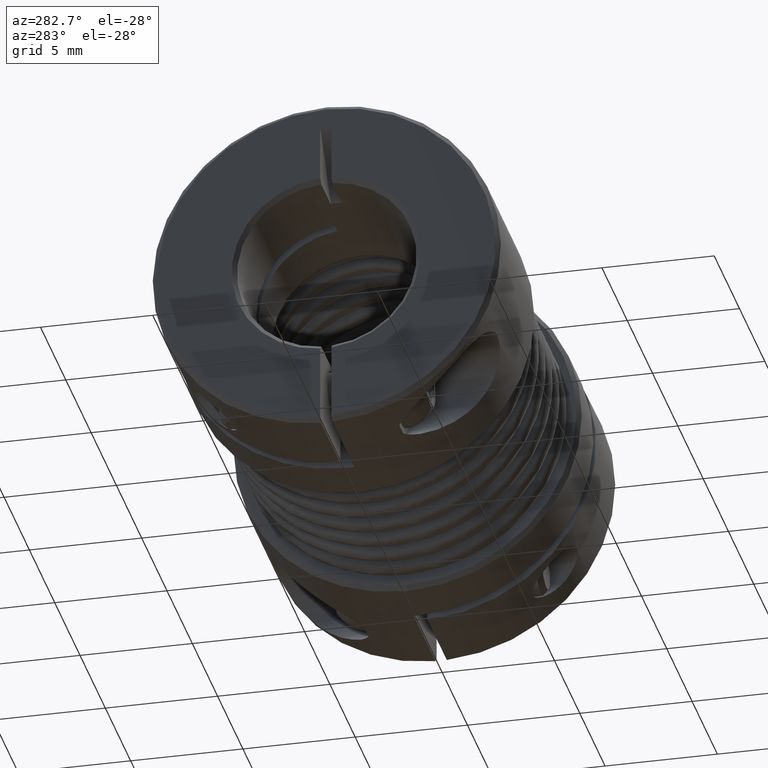
[diagram: clean part render]
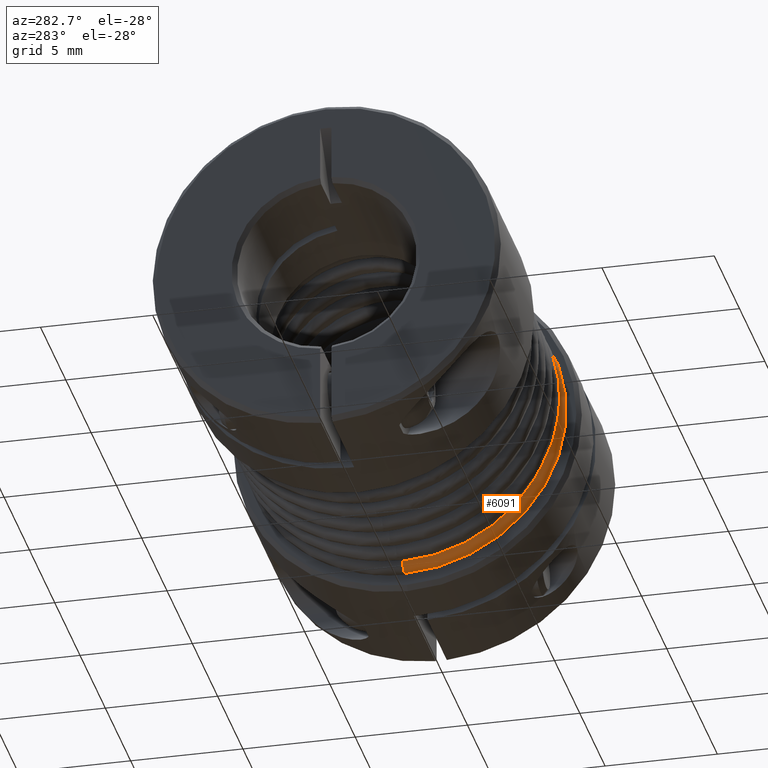
[diagram: same view with one face highlighted and labeled with its STEP entity id]
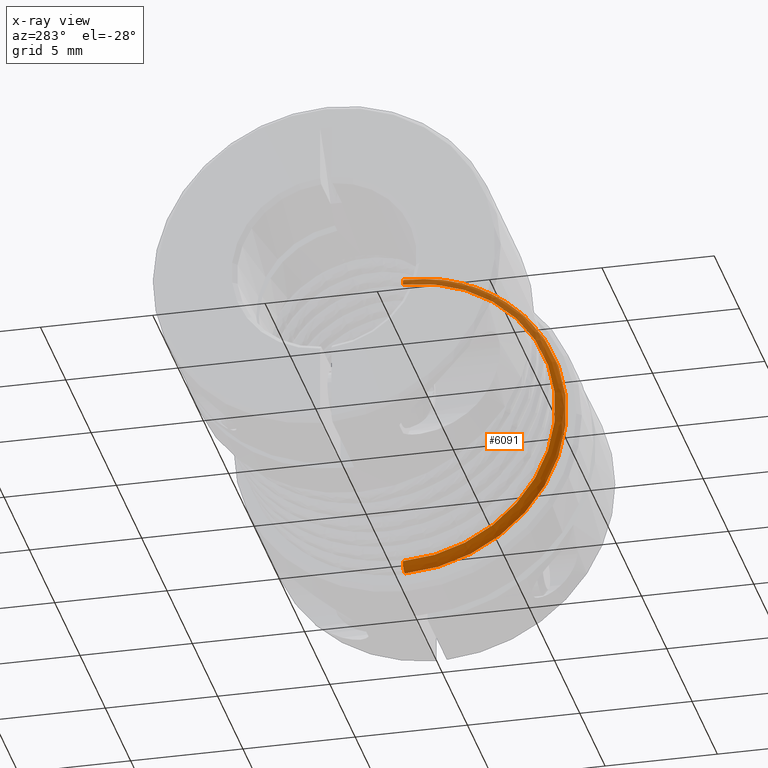
[diagram: x-ray of the same camera — body ghosted, the highlighted face saturated]
A machine part, auxiliary view. The second image highlights one B-rep face of the part: STEP entity #6091.
The next image is the same camera in x-ray: the body ghosted, the highlighted face saturated — about 23% of this face is hidden behind the body in this view.
In plain terms, the highlighted face is a freeform B-spline surface patch.
Its self-contained STEP definition (entity closure, byte-faithful):
#60 = FACE_OUTER_BOUND ( 'NONE', #13462, .T. ) ;
#698 = DIRECTION ( 'NONE',  ( 2.775557561562892584E-17, -1.000000000000000000, -1.967354115612584866E-16 ) ) ;
#1837 = CARTESIAN_POINT ( 'NONE',  ( -0.3070868544070789463, 4.596078804358355058E-17, -0.2769412990740604541 ) ) ;
#2304 = DIRECTION ( 'NONE',  ( 0.0000000000000000000, -7.427073164652319051E-17, 1.000000000000000000 ) ) ;
#2518 = AXIS2_PLACEMENT_3D ( 'NONE', #5151, #5464, #2304 ) ;
#2904 = ORIENTED_EDGE ( 'NONE', *, *, #5751, .F. ) ;
#3304 = CARTESIAN_POINT ( 'NONE',  ( -0.3005637564281013474, -0.5669291338555975113, -0.2834645669277988667 ) ) ;
#3415 = CARTESIAN_POINT ( 'NONE',  ( -0.3070866141678884609, -0.5354322506525051040, -0.2677161253262527185 ) ) ;
#3944 = CARTESIAN_POINT ( 'NONE',  ( -0.3070866141678884609, 4.414587635762420378E-17, -0.2677161253265714635 ) ) ;
#4326 = ORIENTED_EDGE ( 'NONE', *, *, #8647, .T. ) ;
#4741 = VERTEX_POINT ( 'NONE', #9989 ) ;
#4886 = CARTESIAN_POINT ( 'NONE',  ( -0.3070866141678884609, -0.5354322506525051040, 0.2677161253262524965 ) ) ;
#5094 = CARTESIAN_POINT ( 'NONE',  ( -0.3005637564281012919, 4.742519816871675748E-17, -0.2834645669277987001 ) ) ;
#5151 = CARTESIAN_POINT ( 'NONE',  ( -0.2913385826771653919, -8.086270061246223022E-18, 4.517790813689283991E-18 ) ) ;
#5224 = AXIS2_PLACEMENT_3D ( 'NONE', #11715, #9509, #15737 ) ;
#5464 = DIRECTION ( 'NONE',  ( -1.000000000000000000, -2.775557561562892584E-17, 1.550701171185240690E-17 ) ) ;
#5751 = EDGE_CURVE ( 'NONE', #13900, #18310, #18631, .T. ) ;
#5870 = CIRCLE ( 'NONE', #5224, 0.2677161253261835516 ) ;
#6091 = ADVANCED_FACE ( 'NONE', ( #60 ), #13939, .T. ) ;
#6154 = EDGE_CURVE ( 'NONE', #19681, #4741, #11589, .T. ) ;
#6640 = CARTESIAN_POINT ( 'NONE',  ( -0.2913385826771653919, -2.796977302163358870E-17, 0.2677165354317357915 ) ) ;
#6646 = EDGE_CURVE ( 'NONE', #4741, #18310, #12580, .T. ) ;
#7297 = CARTESIAN_POINT ( 'NONE',  ( -0.3005637564281013474, -0.5669291338555975113, 0.2834645669277985891 ) ) ;
#8353 = CARTESIAN_POINT ( 'NONE',  ( -0.2913385826771653919, -2.913939084283867205E-17, 0.2834645669277987556 ) ) ;
#8647 = EDGE_CURVE ( 'NONE', #13900, #19681, #5870, .T. ) ;
#9509 = DIRECTION ( 'NONE',  ( 1.000000000000000000, 2.775557561562892584E-17, -1.550701171185240690E-17 ) ) ;
#9711 = CARTESIAN_POINT ( 'NONE',  ( -0.3070866141678884609, 4.414587635756148318E-17, -0.2677161253262526075 ) ) ;
#9817 = ORIENTED_EDGE ( 'NONE', *, *, #6154, .T. ) ;
#9821 = CARTESIAN_POINT ( 'NONE',  ( -0.3070866141678884609, -9.397837743382276377E-17, 0.2677161253262526075 ) ) ;
#9927 = CARTESIAN_POINT ( 'NONE',  ( -0.3070868544070789463, -0.5538825981481207972, -0.2769412990740605096 ) ) ;
#9989 = CARTESIAN_POINT ( 'NONE',  ( -0.2913385826771653919, 4.768124817632818002E-17, -0.2834645669277987556 ) ) ;
#10238 = AXIS2_PLACEMENT_3D ( 'NONE', #14876, #698, #19701 ) ;
#10689 = CARTESIAN_POINT ( 'NONE',  ( -0.3070866141678884609, -2.840683824163736635E-17, 0.2677161253262526075 ) ) ;
#11294 = CARTESIAN_POINT ( 'NONE',  ( -0.3070868544070789463, -9.692306040598197351E-17, 0.2769412990740604541 ) ) ;
#11491 = DIRECTION ( 'NONE',  ( -2.775557561562892584E-17, 1.000000000000000000, 7.427073164652317819E-17 ) ) ;
#11589 = CIRCLE ( 'NONE', #10238, 0.01574803149606299885 ) ;
#11705 = DIRECTION ( 'NONE',  ( 0.0000000000000000000, -7.427073164652328912E-17, 1.000000000000000000 ) ) ;
#11715 = CARTESIAN_POINT ( 'NONE',  ( -0.3070866141678884609, -8.523365740084294024E-18, 4.761995722454547132E-18 ) ) ;
#11835 = CARTESIAN_POINT ( 'NONE',  ( -0.3005637564281012919, -9.882423576241398414E-17, 0.2834645669277987001 ) ) ;
#12041 = CARTESIAN_POINT ( 'NONE',  ( -0.2913385826771653364, -0.5669291338555975113, 0.2834645669277985891 ) ) ;
#12580 = CIRCLE ( 'NONE', #2518, 0.2834645669277987556 ) ;
#13084 = CARTESIAN_POINT ( 'NONE',  ( -0.3070868544070789463, -0.5538825981481209082, 0.2769412990740602876 ) ) ;
#13410 = CARTESIAN_POINT ( 'NONE',  ( -0.2913385826771653364, -0.5669291338555974002, -0.2834645669277988667 ) ) ;
#13462 = EDGE_LOOP ( 'NONE', ( #4326, #9817, #18834, #2904 ) ) ;
#13900 = VERTEX_POINT ( 'NONE', #10689 ) ;
#13939 =( BOUNDED_SURFACE ( )  B_SPLINE_SURFACE ( 3, 3, ( 
 ( #9711, #3415, #4886, #9821 ),
 ( #1837, #9927, #13084, #11294 ),
 ( #5094, #3304, #7297, #11835 ),
 ( #15297, #13410, #12041, #16873 ) ),
 .UNSPECIFIED., .F., .F., .T. ) 
 B_SPLINE_SURFACE_WITH_KNOTS ( ( 4, 4 ),
 ( 4, 4 ),
 ( 0.0000000000000000000, 1.000000000000000000 ),
 ( 0.0000000000000000000, 1.000000000000000000 ),
 .UNSPECIFIED. ) 
 GEOMETRIC_REPRESENTATION_ITEM ( )  RATIONAL_B_SPLINE_SURFACE ( (
 ( 1.000000000000000000, 0.3333333333333334259, 0.3333333333333334259, 1.000000000000000000),
 ( 0.8047317159972774414, 0.2682439053324258693, 0.2682439053324258693, 0.8047317159972774414),
 ( 0.8047317159972774414, 0.2682439053324258693, 0.2682439053324258693, 0.8047317159972774414),
 ( 1.000000000000000000, 0.3333333333333334259, 0.3333333333333334259, 1.000000000000000000) ) ) 
 REPRESENTATION_ITEM ( '' )  SURFACE ( )  );
#14876 = CARTESIAN_POINT ( 'NONE',  ( -0.2913385826771653919, 4.458305271867056097E-17, -0.2677165354317357915 ) ) ;
#15297 = CARTESIAN_POINT ( 'NONE',  ( -0.2913385826771653919, 4.768124817632818002E-17, -0.2834645669277987556 ) ) ;
#15737 = DIRECTION ( 'NONE',  ( 0.0000000000000000000, -7.427073164652317819E-17, 1.000000000000000000 ) ) ;
#16873 = CARTESIAN_POINT ( 'NONE',  ( -0.2913385826771653919, -9.856818575480257392E-17, 0.2834645669277987556 ) ) ;
#18310 = VERTEX_POINT ( 'NONE', #8353 ) ;
#18631 = CIRCLE ( 'NONE', #19977, 0.01574803149606299885 ) ;
#18834 = ORIENTED_EDGE ( 'NONE', *, *, #6646, .T. ) ;
#19681 = VERTEX_POINT ( 'NONE', #3944 ) ;
#19701 = DIRECTION ( 'NONE',  ( 0.0000000000000000000, 1.967354115612586345E-16, -1.000000000000000000 ) ) ;
#19977 = AXIS2_PLACEMENT_3D ( 'NONE', #6640, #11491, #11705 ) ;